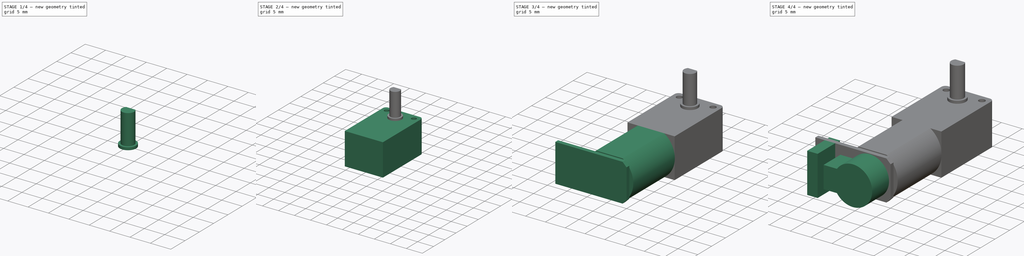
[diagram: build sequence overview — one tinted view per stage of 4, left to right]
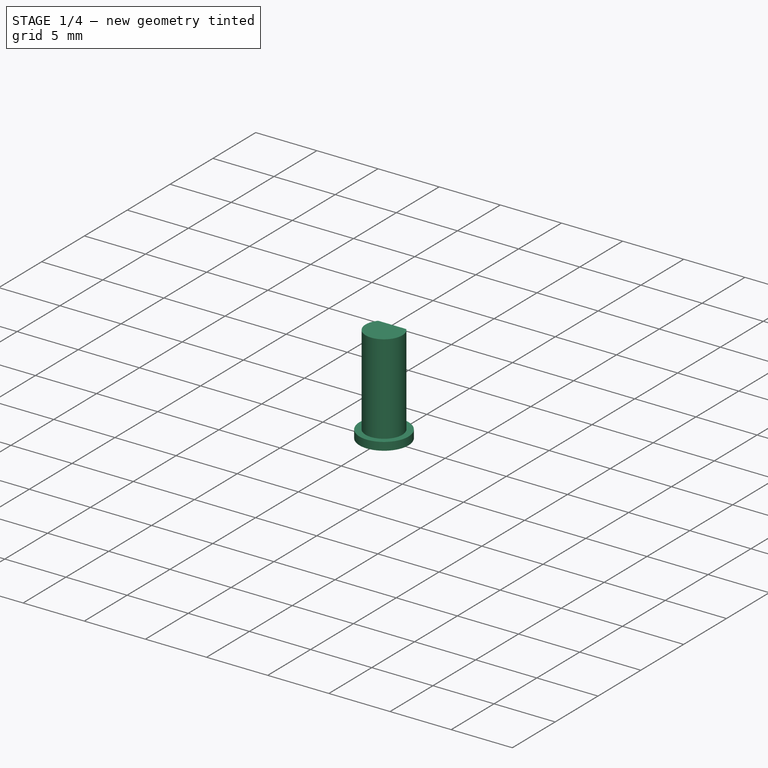
[diagram: stage 1 of 4 — iso view after this stage's code; geometry added in this stage tinted green]
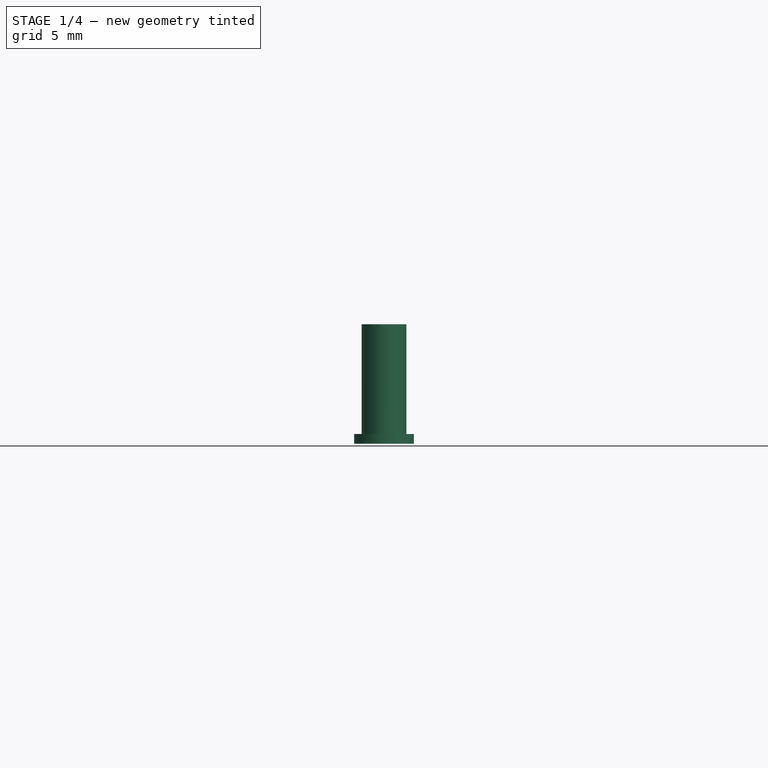
[diagram: stage 1 of 4 — front view after this stage's code; geometry added in this stage tinted green]
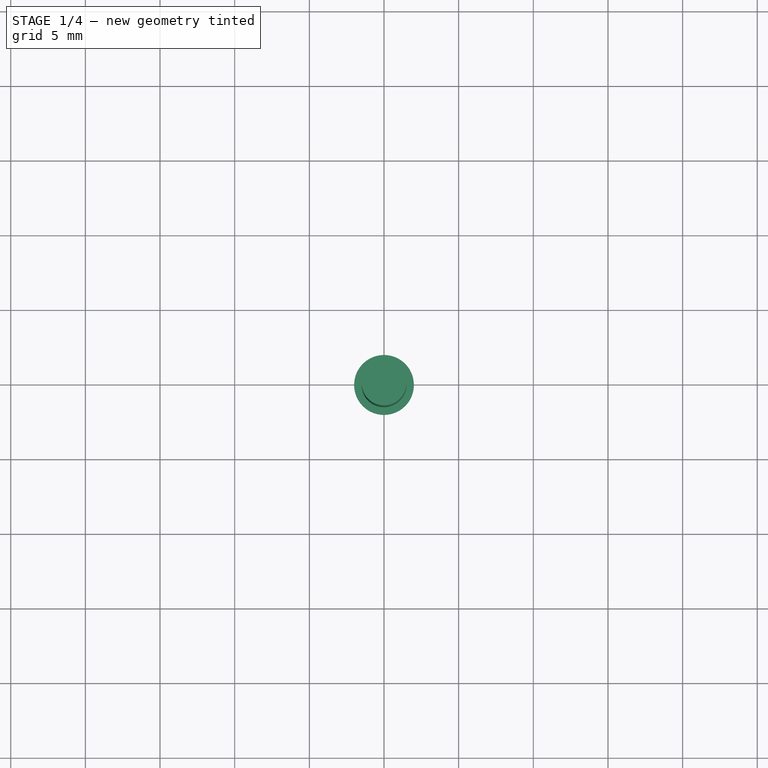
[diagram: stage 1 of 4 — top view after this stage's code; geometry added in this stage tinted green]
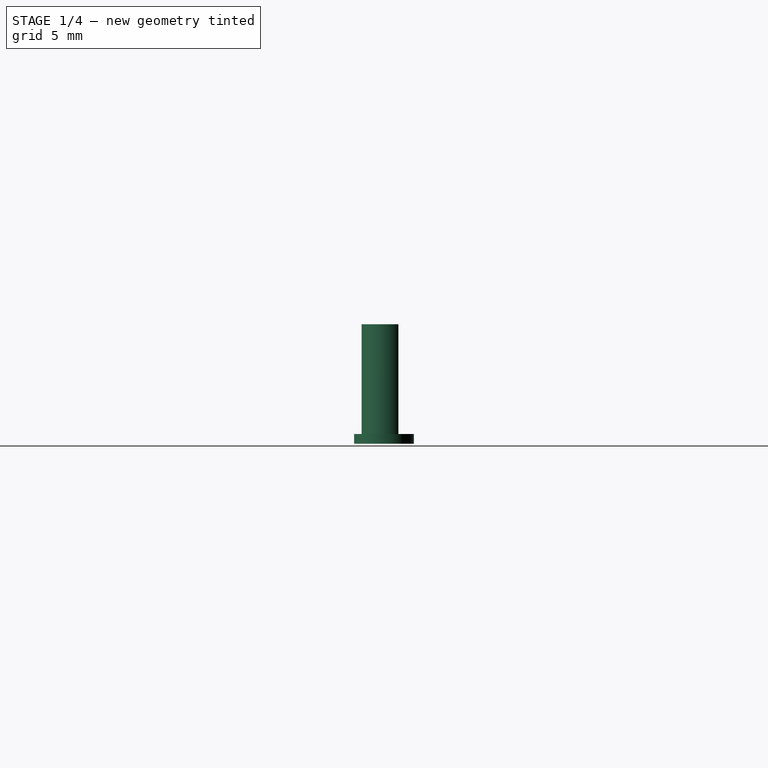
[diagram: stage 1 of 4 — right view after this stage's code; geometry added in this stage tinted green]
FCSTD DOCUMENT  (FreeCAD 0.19R24291 (Git))
Label: right-angle-n20
License: All rights reserved
LicenseURL: http://en.wikipedia.org/wiki/All_rights_reserved
objects: Sketcher::SketchObject×7, PartDesign::Pad×7, PartDesign::Plane×3, PartDesign::Fillet×1, PartDesign::Chamfer×1, PartDesign::Body×1
note: 29 computed .brp shape members not serialized (recipe doc carries the construction recipe); baked Part::Feature solids carry a one-line shape summary decoded from their .brp

FEATURE [Sketcher::SketchObject] Sketch
  FullyConstrained = true
  MapMode = 5
  Support = -> [XY_Plane]
  sketch-geometry (2):
    g0: ArcOfCircle CenterX=0 CenterY=0 CenterZ=0 NormalX=0 NormalY=0 NormalZ=1 AngleXU=0 Radius=1.5 StartAngle=2.44709 EndAngle=6.97768
    g1: LineSegment StartX=-1.15256 StartY=0.96 StartZ=0 EndX=1.15256 EndY=0.96 EndZ=0
  constraints (6):
    c: Coincident(g0,g-1)
    c: Diameter(g0) = 3
    c: Coincident(g1,g0)
    c: Coincident(g1,g0)
    c: Horizontal(g1)
    c: DistanceY(g0,g0) = 0.96
FEATURE [PartDesign::Pad] Pad
  Direction = (1,1,1)
  Length = 8
  Length2 = 100
  Profile = -> Sketch
  Type = 0
FEATURE [Sketcher::SketchObject] Sketch001
  FullyConstrained = true
  MapMode = 5
  Support = -> [XY_Plane]
  sketch-geometry (1):
    g0: Circle CenterX=0 CenterY=0 CenterZ=0 NormalX=0 NormalY=0 NormalZ=1 AngleXU=0 Radius=2
  constraints (2):
    c: Coincident(g0,g-1)
    c: Diameter(g0) = 4
FEATURE [PartDesign::Pad] Pad001
  BaseFeature = -> Pad
  Direction = (1,1,1)
  Length = 0.65
  Length2 = 100
  Profile = -> Sketch001
  Type = 0
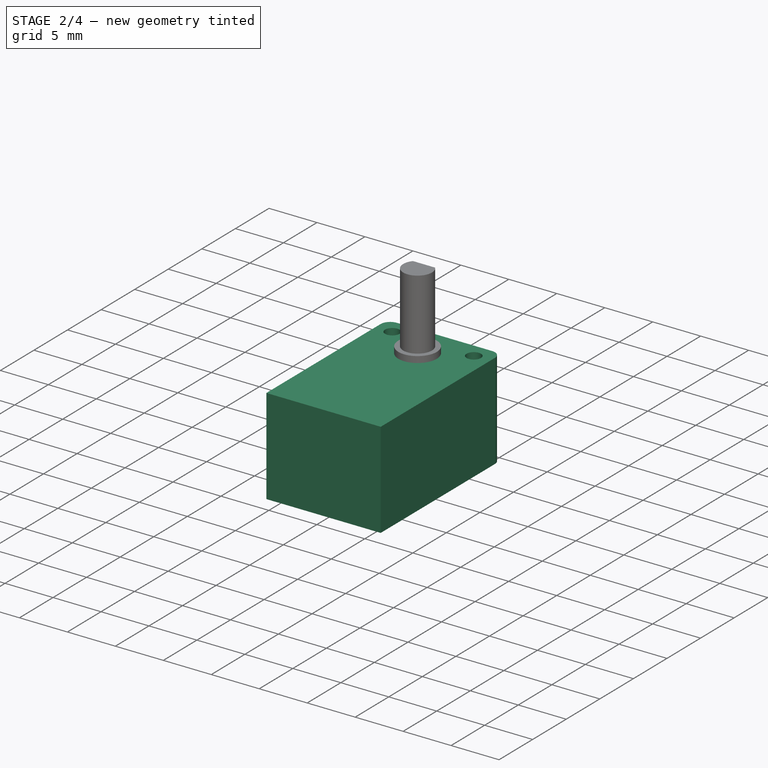
[diagram: stage 2 of 4 — iso view after this stage's code; geometry added in this stage tinted green]
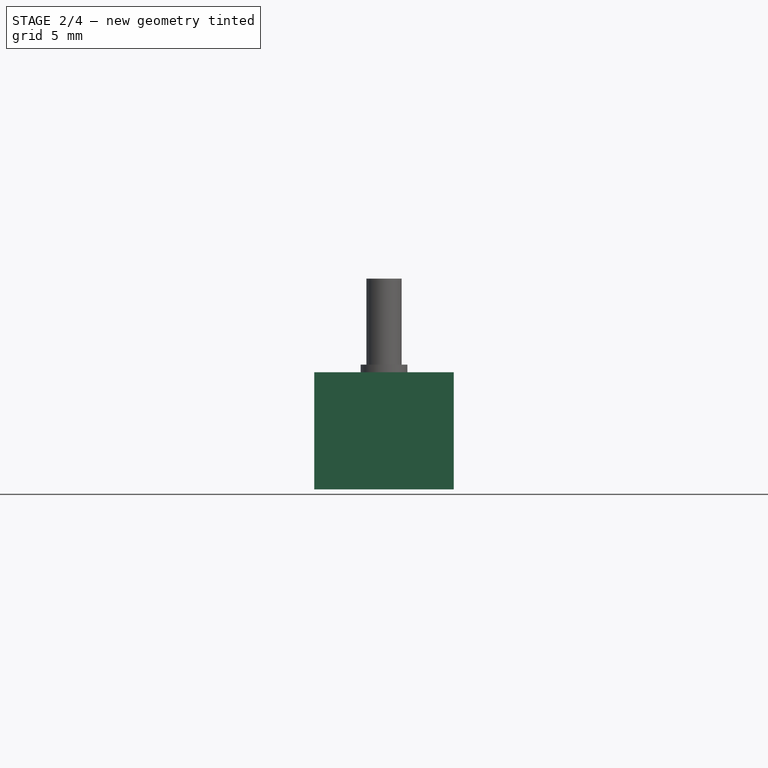
[diagram: stage 2 of 4 — front view after this stage's code; geometry added in this stage tinted green]
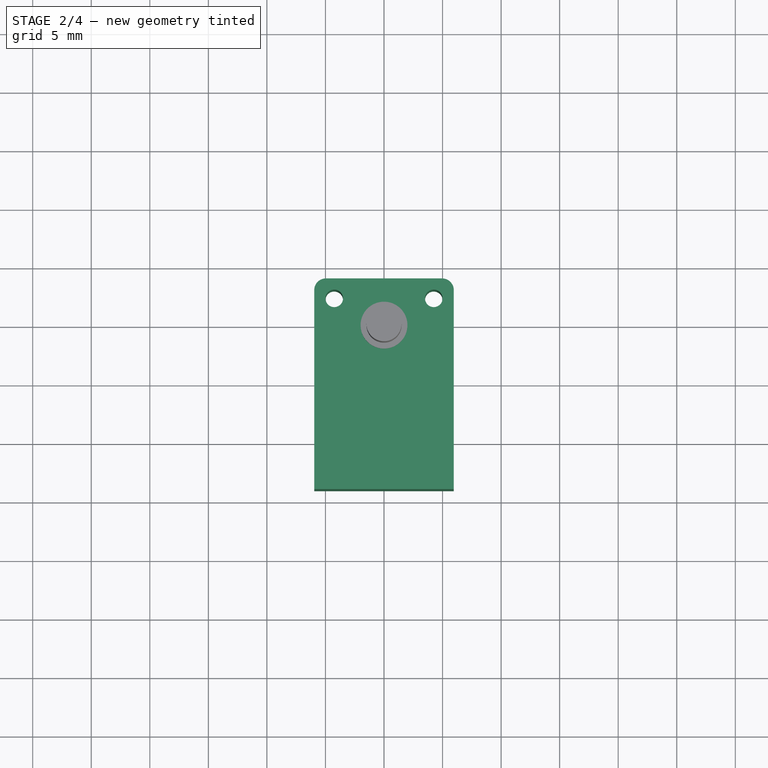
[diagram: stage 2 of 4 — top view after this stage's code; geometry added in this stage tinted green]
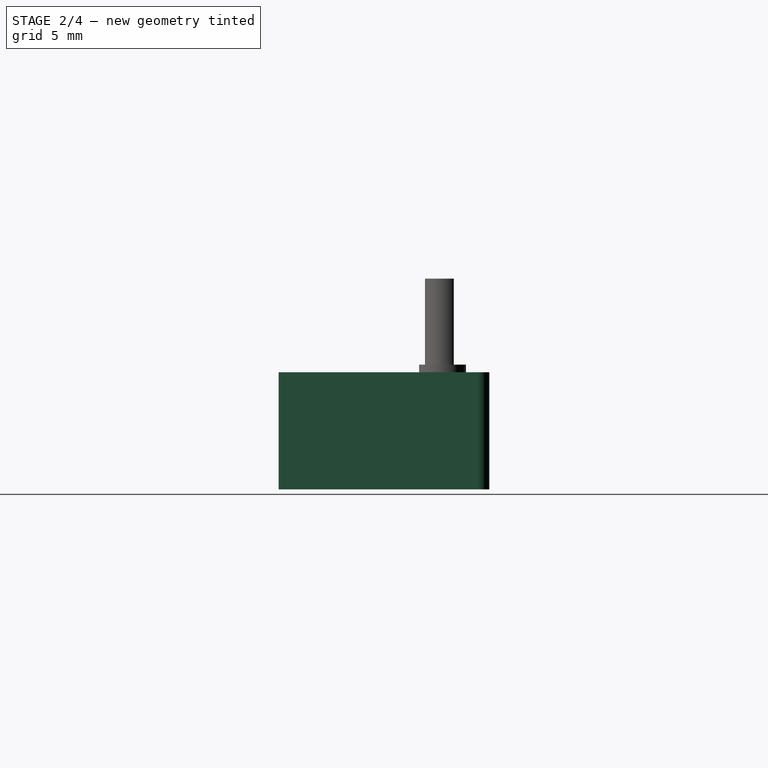
[diagram: stage 2 of 4 — right view after this stage's code; geometry added in this stage tinted green]
FEATURE [Sketcher::SketchObject] Sketch002
  FullyConstrained = true
  MapMode = 5
  Support = -> [XY_Plane]
  sketch-geometry (9):
    g0: LineSegment StartX=-5.96 StartY=4 StartZ=0 EndX=5.96 EndY=4 EndZ=0
    g1: LineSegment StartX=5.96 StartY=4 StartZ=0 EndX=5.96 EndY=-14 EndZ=0
    g2: LineSegment StartX=5.96 StartY=-14 StartZ=0 EndX=-5.96 EndY=-14 EndZ=0
    g3: LineSegment StartX=-5.96 StartY=-14 StartZ=0 EndX=-5.96 EndY=4 EndZ=0
    g4: GeomPoint X=0 Y=4 Z=0
    g5: Circle CenterX=4.25 CenterY=2.3 CenterZ=0 NormalX=0 NormalY=0 NormalZ=1 AngleXU=0 Radius=0.75
    g6: Circle CenterX=-4.25 CenterY=2.3 CenterZ=0 NormalX=0 NormalY=0 NormalZ=1 AngleXU=0 Radius=0.75
    g7: LineSegment StartX=-4.25 StartY=2.3 StartZ=0 EndX=4.25 EndY=2.3 EndZ=0
    g8: GeomPoint X=0 Y=2.3 Z=0
  constraints (22):
    c: Coincident(g0,g1)
    c: Coincident(g1,g2)
    c: Coincident(g2,g3)
    c: Coincident(g3,g0)
    c: Horizontal(g0)
    c: Horizontal(g2)
    c: Vertical(g1)
    c: Vertical(g3)
    c: DistanceX(g0,g0) = 11.92
    c: Symmetric(g0,g0,g4)
    c: PointOnObject(g4,g-2)
    c: DistanceY(g3,g3) = 18
    c: DistanceY(g-1,g0) = 4
    c: Diameter(g5) = 1.5
    c: Diameter(g6) = 1.5
    c: Coincident(g7,g6)
    c: Coincident(g7,g5)
    c: Horizontal(g7)
    c: DistanceX(g7,g7) = 8.5
    c: Symmetric(g7,g7,g8)
    c: PointOnObject(g8,g-2)
    c: DistanceY(g5,g0) = 1.7
FEATURE [PartDesign::Pad] Pad002
  BaseFeature = -> Pad001
  Direction = (1,1,1)
  Length = 10
  Length2 = 100
  Profile = -> Sketch002
  Reversed = true
  Type = 0
FEATURE [PartDesign::Fillet] Fillet
  Base = -> Pad002 [Edge1,Edge2]
  BaseFeature = -> Pad002
  Radius = 1
  SupportTransform = false
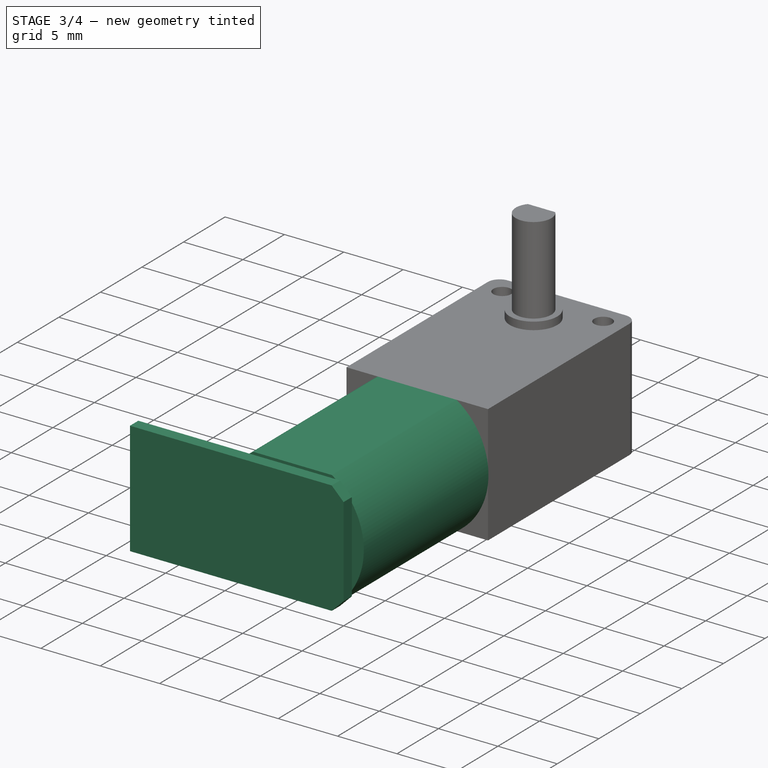
[diagram: stage 3 of 4 — iso view after this stage's code; geometry added in this stage tinted green]
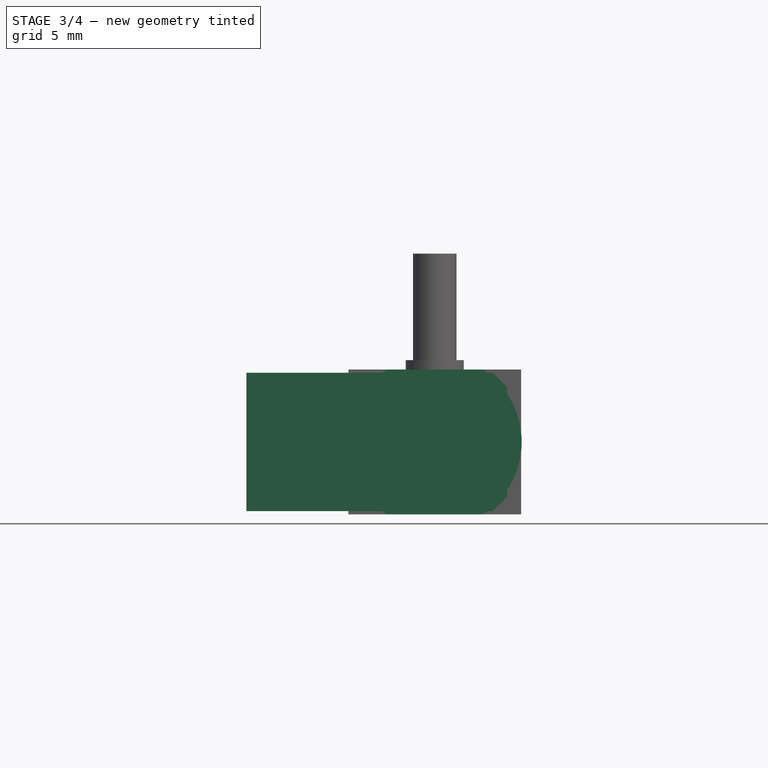
[diagram: stage 3 of 4 — front view after this stage's code; geometry added in this stage tinted green]
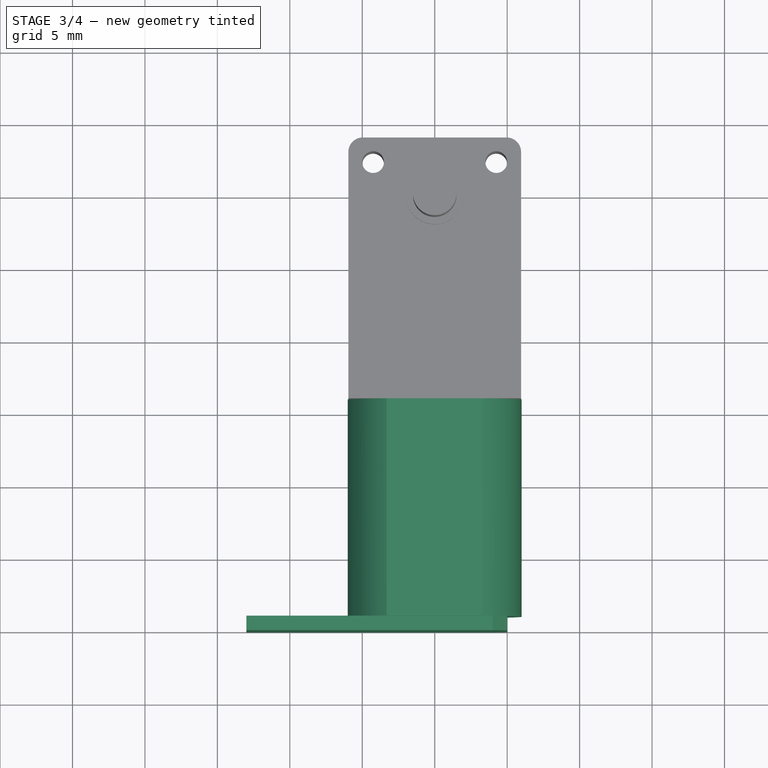
[diagram: stage 3 of 4 — top view after this stage's code; geometry added in this stage tinted green]
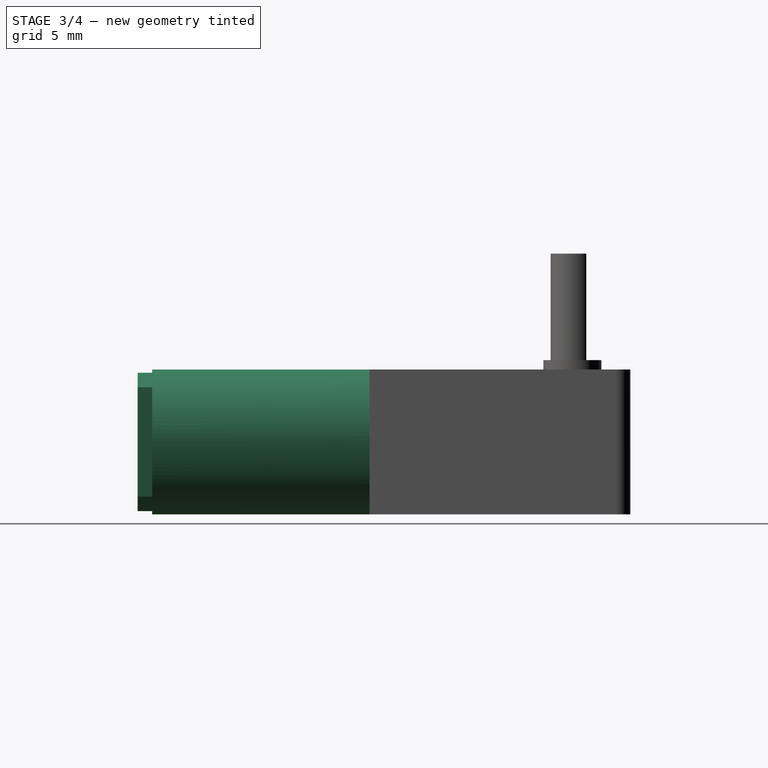
[diagram: stage 3 of 4 — right view after this stage's code; geometry added in this stage tinted green]
FEATURE [PartDesign::Plane] DatumPlane
  Length = 60
  MapMode = 5
  Placement = pos=(0,-14,0) rot=(1,0,0;1.5708rad)
  ResizeMode = 0
  Support = -> [Fillet]
  Width = 60
FEATURE [Sketcher::SketchObject] Sketch003
  FullyConstrained = true
  MapMode = 5
  Placement = pos=(0,-14,0) rot=(1,0,0;1.5708rad)
  Support = -> [DatumPlane]
  sketch-geometry (4):
    g0: ArcOfCircle CenterX=0 CenterY=-5 CenterZ=0 NormalX=0 NormalY=0 NormalZ=1 AngleXU=0 Radius=6 StartAngle=5.29807 EndAngle=7.2683
    g1: ArcOfCircle CenterX=0 CenterY=-5 CenterZ=0 NormalX=0 NormalY=0 NormalZ=1 AngleXU=0 Radius=6 StartAngle=2.15648 EndAngle=4.1267
    g2: LineSegment StartX=-3.31662 StartY=-1.8e-15 StartZ=0 EndX=3.31662 EndY=-1.8e-15 EndZ=0
    g3: LineSegment StartX=-3.31662 StartY=-10 StartZ=0 EndX=3.31662 EndY=-10 EndZ=0
  constraints (13):
    c: PointOnObject(g0,g-2)
    c: Coincident(g1,g0)
    c: Diameter(g0) = 12
    c: Diameter(g1) = 12
    c: Coincident(g2,g1)
    c: Coincident(g2,g0)
    c: Coincident(g3,g1)
    c: Coincident(g3,g0)
    c: Horizontal(g2)
    c: Horizontal(g3)
    c: DistanceY(g1,g1) = 10
    c: PointOnObject(g-1,g2)
    c: Equal(g2,g3)
FEATURE [PartDesign::Pad] Pad003
  BaseFeature = -> Fillet
  Direction = (1,1,1)
  Length = 15
  Length2 = 100
  Profile = -> Sketch003
  Type = 0
FEATURE [PartDesign::Plane] DatumPlane001
  Length = 60
  MapMode = 5
  Placement = pos=(0,-29,6.1e-15) rot=(1,0,0;1.5708rad)
  ResizeMode = 0
  Support = -> [Pad003]
  Width = 60
FEATURE [Sketcher::SketchObject] Sketch004
  FullyConstrained = true
  MapMode = 5
  Placement = pos=(0,-29,6.1e-15) rot=(1,0,0;1.5708rad)
  Support = -> [DatumPlane001]
  sketch-geometry (4):
    g0: LineSegment StartX=-13 StartY=-0.225 StartZ=0 EndX=5 EndY=-0.225 EndZ=0
    g1: LineSegment StartX=5 StartY=-0.225 StartZ=0 EndX=5 EndY=-9.775 EndZ=0
    g2: LineSegment StartX=5 StartY=-9.775 StartZ=0 EndX=-13 EndY=-9.775 EndZ=0
    g3: LineSegment StartX=-13 StartY=-9.775 StartZ=0 EndX=-13 EndY=-0.225 EndZ=0
  constraints (12):
    c: Coincident(g0,g1)
    c: Coincident(g1,g2)
    c: Coincident(g2,g3)
    c: Coincident(g3,g0)
    c: Horizontal(g0)
    c: Horizontal(g2)
    c: Vertical(g1)
    c: Vertical(g3)
    c: DistanceY(g3,g3) = 9.55
    c: DistanceY(g0,g-1) = 0.225
    c: DistanceX(g0,g-1) = 13
    c: DistanceX(g-1,g0) = 5
FEATURE [PartDesign::Pad] Pad004
  BaseFeature = -> Pad003
  Direction = (1,1,1)
  Length = 1
  Length2 = 100
  Profile = -> Sketch004
  Type = 0
FEATURE [PartDesign::Chamfer] Chamfer
  Angle = 45
  Base = -> Pad004 [Edge69,Edge75]
  BaseFeature = -> Pad004
  ChamferType = 0
  FlipDirection = false
  Size = 1
  Size2 = 1
  SupportTransform = false
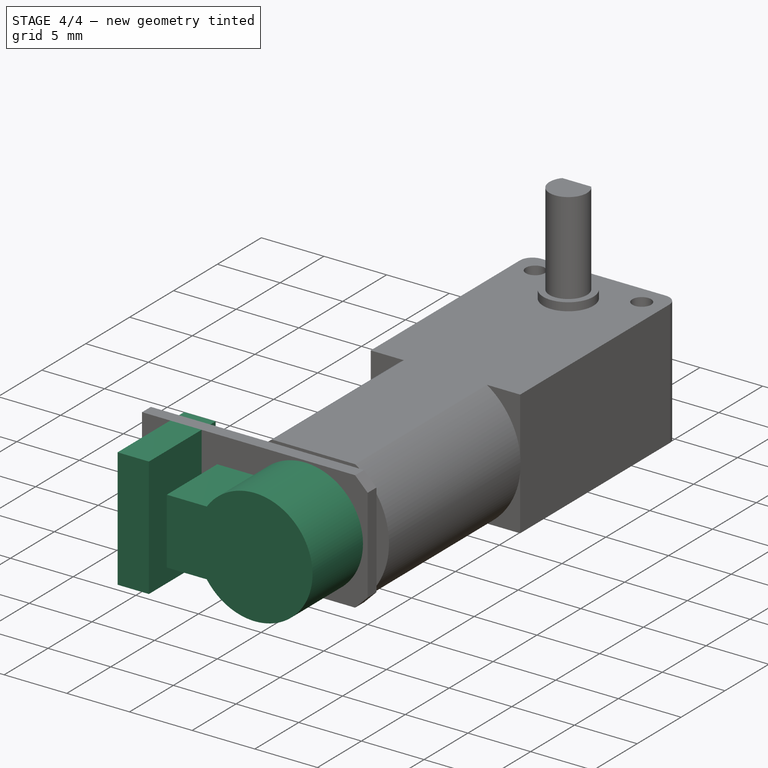
[diagram: stage 4 of 4 — iso view after this stage's code; geometry added in this stage tinted green]
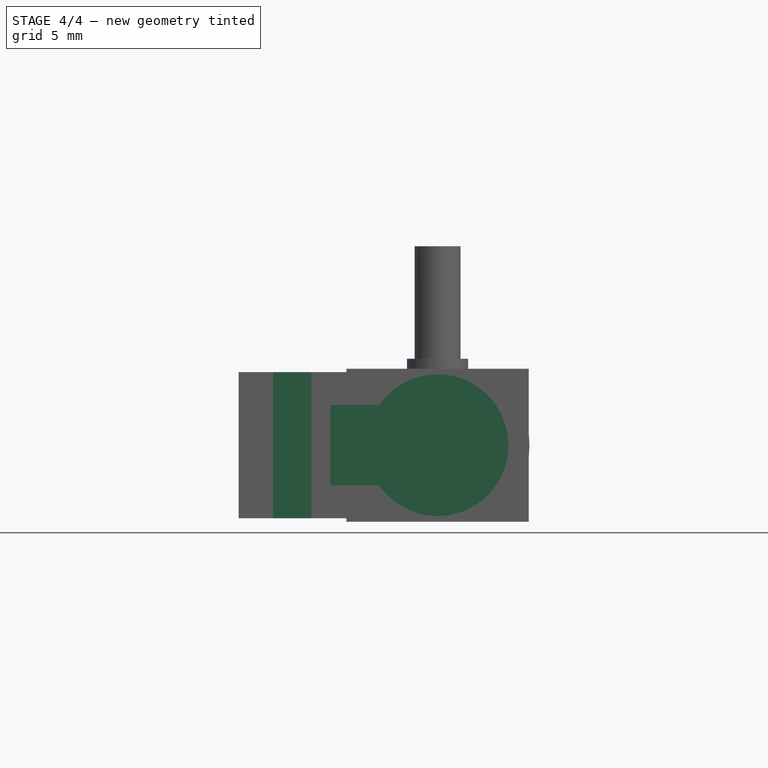
[diagram: stage 4 of 4 — front view after this stage's code; geometry added in this stage tinted green]
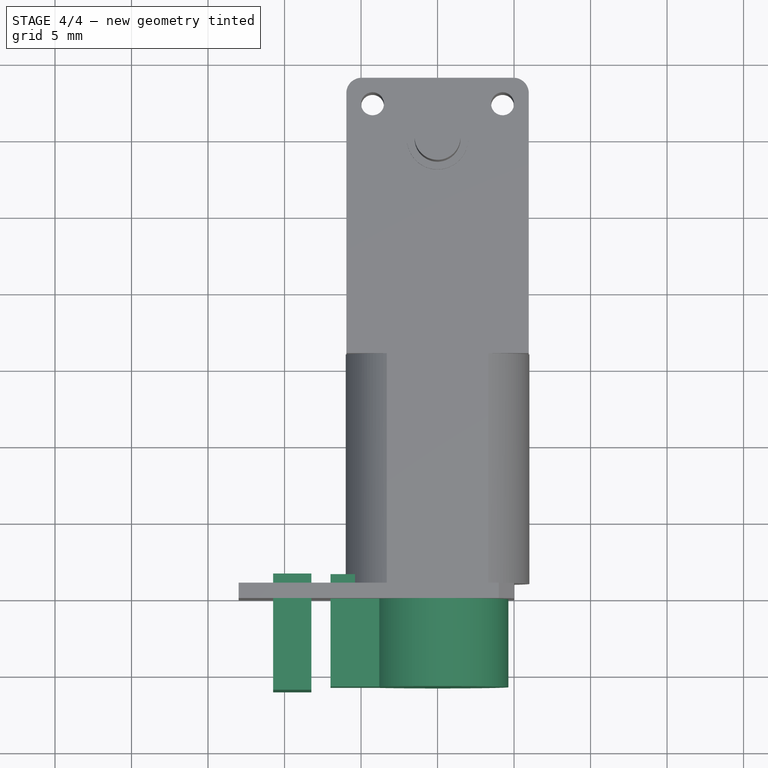
[diagram: stage 4 of 4 — top view after this stage's code; geometry added in this stage tinted green]
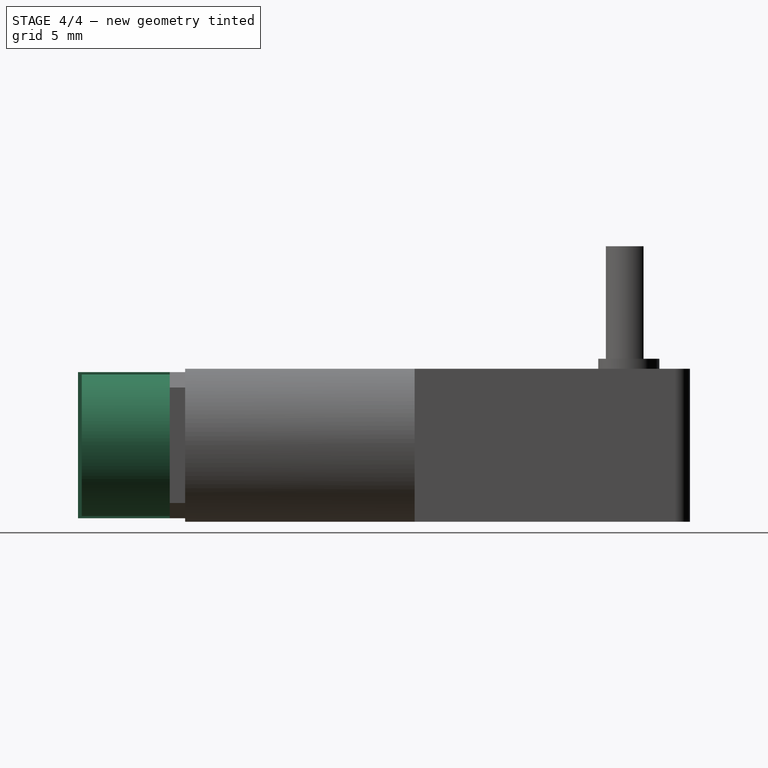
[diagram: stage 4 of 4 — right view after this stage's code; geometry added in this stage tinted green]
FEATURE [PartDesign::Plane] DatumPlane002
  Length = 60
  MapMode = 5
  Placement = pos=(0,-30,1.11e-14) rot=(1,0,0;1.5708rad)
  ResizeMode = 0
  Support = -> [Chamfer]
  Width = 60
FEATURE [Sketcher::SketchObject] Sketch005
  FullyConstrained = true
  MapMode = 5
  Placement = pos=(0,-30,1.11e-14) rot=(1,0,0;1.5708rad)
  Support = -> [DatumPlane002]
  sketch-geometry (4):
    g0: ArcOfCircle CenterX=0 CenterY=-5 CenterZ=0 NormalX=0 NormalY=0 NormalZ=1 AngleXU=0 Radius=4.625 StartAngle=3.74514 EndAngle=8.82123
    g1: LineSegment StartX=-3.80789 StartY=-2.375 StartZ=0 EndX=-7 EndY=-2.375 EndZ=0
    g2: LineSegment StartX=-7 StartY=-2.375 StartZ=0 EndX=-7 EndY=-7.625 EndZ=0
    g3: LineSegment StartX=-7 StartY=-7.625 StartZ=0 EndX=-3.80789 EndY=-7.625 EndZ=0
  constraints (13):
    c: PointOnObject(g0,g-2)
    c: DistanceY(g0,g-1) = 5
    c: Coincident(g0,g1)
    c: Coincident(g1,g2)
    c: Coincident(g2,g3)
    c: Coincident(g3,g0)
    c: Horizontal(g1)
    c: Horizontal(g3)
    c: Vertical(g2)
    c: Equal(g1,g3)
    c: Diameter(g0) = 9.25
    c: DistanceY(g2,g2) = 5.25
    c: DistanceX(g1,g0) = 7
FEATURE [PartDesign::Pad] Pad005
  BaseFeature = -> Chamfer
  Direction = (1,1,1)
  Length = 5.75
  Length2 = 1.6
  Profile = -> Sketch005
  Type = 4
FEATURE [Sketcher::SketchObject] Sketch006
  FullyConstrained = true
  MapMode = 5
  Placement = pos=(0,-30,1.11e-14) rot=(1,0,0;1.5708rad)
  Support = -> [DatumPlane002]
  sketch-geometry (5):
    g0: LineSegment StartX=-10.75 StartY=-0.225 StartZ=0 EndX=-8.25 EndY=-0.225 EndZ=0
    g1: LineSegment StartX=-8.25 StartY=-0.225 StartZ=0 EndX=-8.25 EndY=-9.775 EndZ=0
    g2: LineSegment StartX=-8.25 StartY=-9.775 StartZ=0 EndX=-10.75 EndY=-9.775 EndZ=0
    g3: LineSegment StartX=-10.75 StartY=-9.775 StartZ=0 EndX=-10.75 EndY=-0.225 EndZ=0
    g4: GeomPoint X=-9.5 Y=-0.225 Z=0
  constraints (13):
    c: Coincident(g0,g1)
    c: Coincident(g1,g2)
    c: Coincident(g2,g3)
    c: Coincident(g3,g0)
    c: Horizontal(g0)
    c: Horizontal(g2)
    c: Vertical(g1)
    c: Vertical(g3)
    c: Symmetric(g0,g0,g4)
    c: DistanceX(g4,g-1) = 9.5
    c: DistanceX(g0,g0) = 2.5
    c: DistanceY(g3,g3) = 9.55
    c: DistanceY(g4,g-1) = 0.225
FEATURE [PartDesign::Pad] Pad006
  BaseFeature = -> Pad005
  Direction = (1,1,1)
  Length = 6
  Length2 = 1.6
  Profile = -> Sketch006
  Type = 4
FEATURE [PartDesign::Body] Body
  Group = -> [Sketch,Pad,Sketch001,Pad001,Sketch002,Pad002,Fillet,DatumPlane,Sketch003,Pad003,DatumPlane001,Sketch004,Pad004,Chamfer,DatumPlane002,Sketch005,Pad005,Sketch006,Pad006]
  Origin = -> Origin
  Tip = -> Pad006
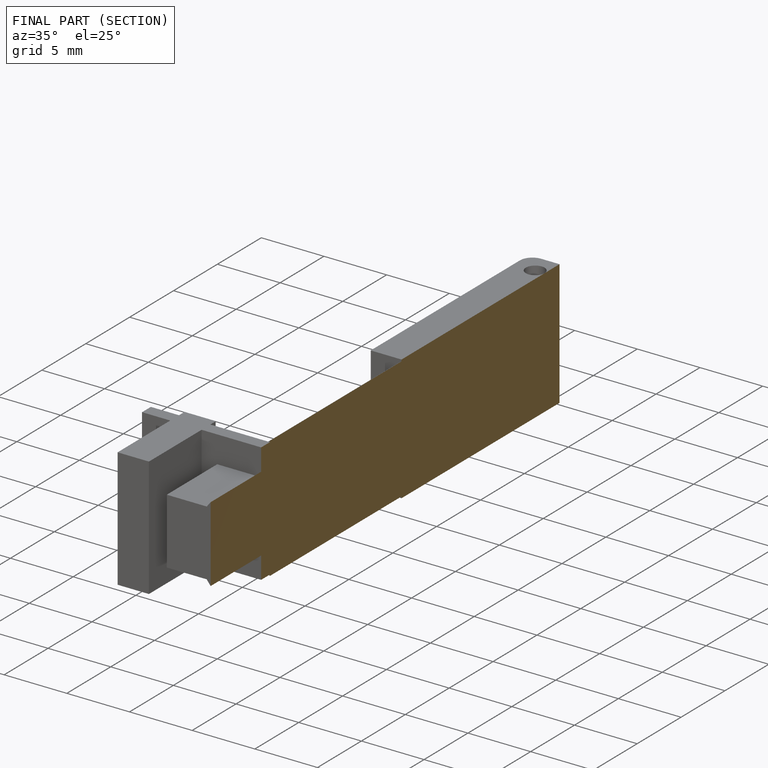
[diagram: finished part — half-section view (interior)]
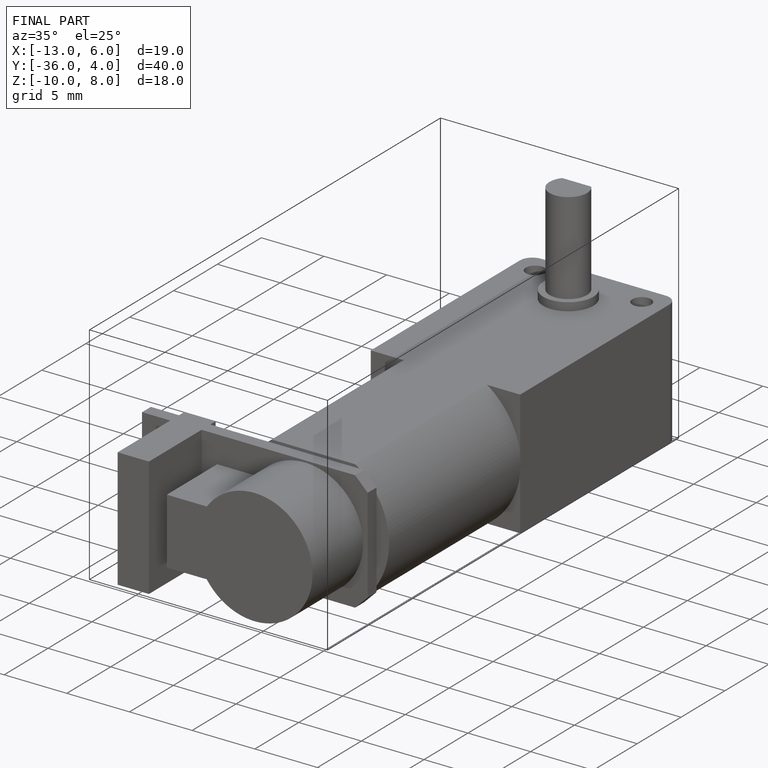
[diagram: finished part — iso view with bounding-box wireframe]
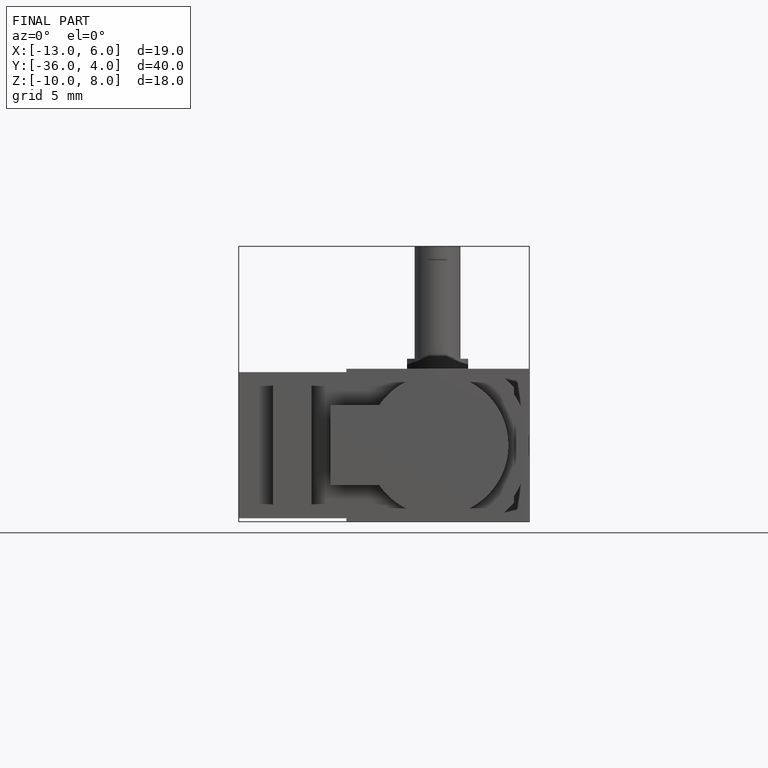
[diagram: finished part — front view with bounding-box wireframe]
